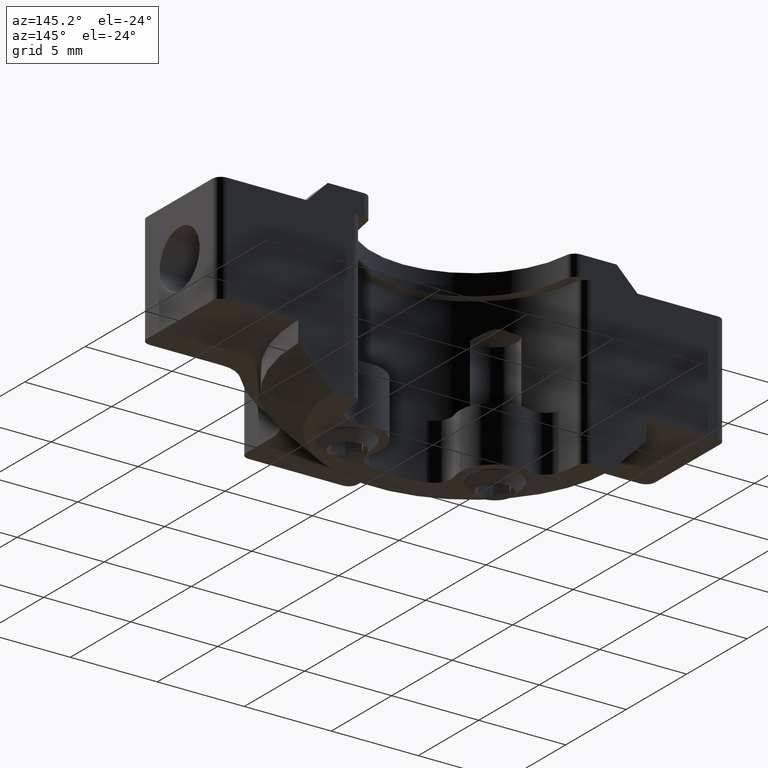
[diagram: clean part render]
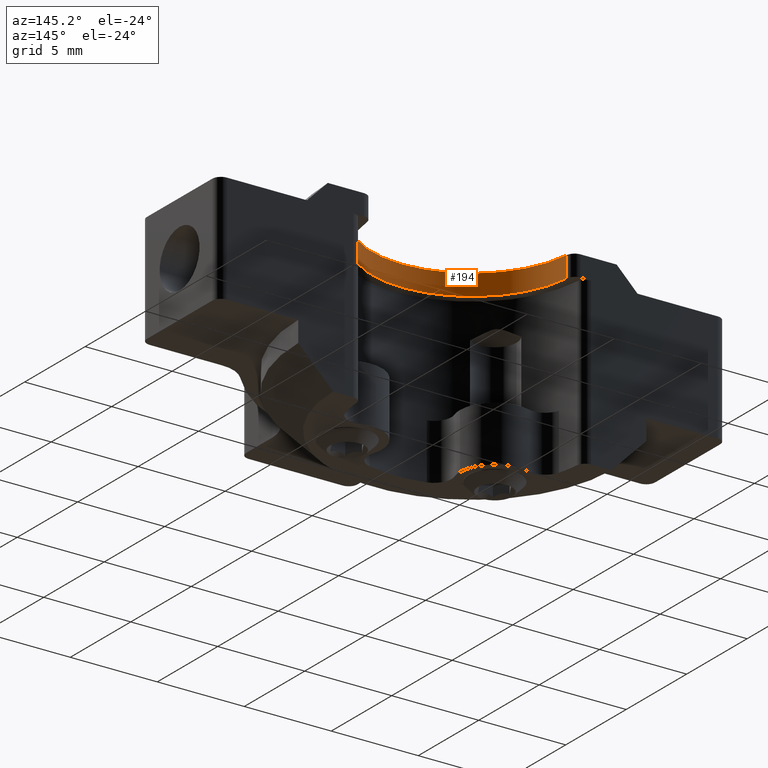
[diagram: same view with one face highlighted and labeled with its STEP entity id]
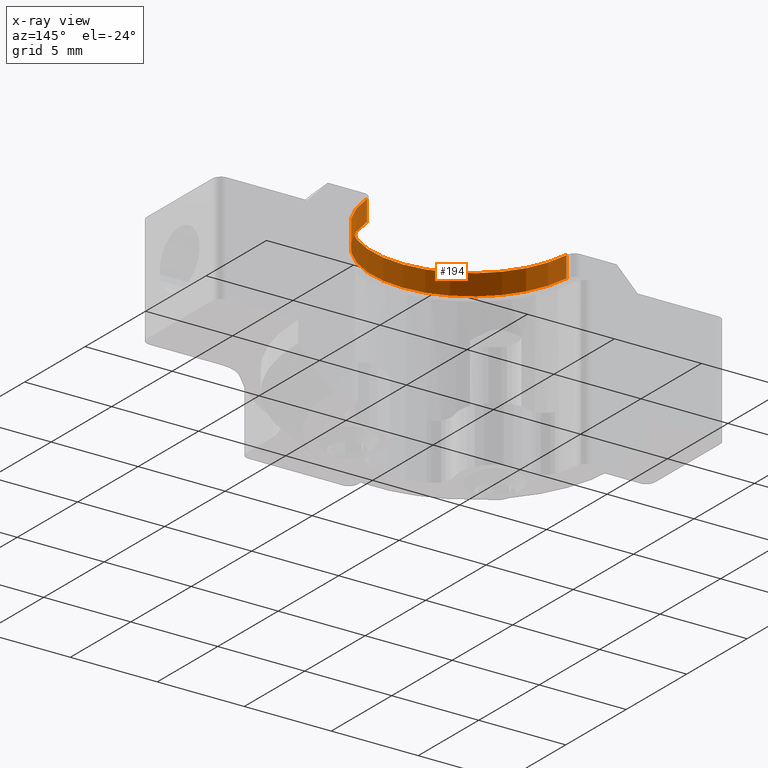
[diagram: x-ray of the same camera — body ghosted, the highlighted face saturated]
A machine part, auxiliary view. The second image highlights one B-rep face of the part: STEP entity #194.
The next image is the same camera in x-ray: the body ghosted, the highlighted face saturated — about 3% of this face is hidden behind the body in this view.
In plain terms, the highlighted cylindrical surface (partial cylindrical patch) has radius 5.75 mm, axis along (-0, -0, 1).
Its self-contained STEP definition (entity closure, byte-faithful):
#194 = ADVANCED_FACE ( 'NONE', ( #2989 ), #716, .F. ) ;
#232 = DIRECTION ( 'NONE',  ( -0.000000000000000000, -0.000000000000000000, -1.000000000000000000 ) ) ;
#250 = CARTESIAN_POINT ( 'NONE',  ( -7.648050176387029886, 5.028821372047168836, 27.05000000000000426 ) ) ;
#291 = VERTEX_POINT ( 'NONE', #1255 ) ;
#363 = CIRCLE ( 'NONE', #627, 5.749999999999999112 ) ;
#391 = CARTESIAN_POINT ( 'NONE',  ( -7.648050176387028998, 5.028821372047168836, 33.35000000000000142 ) ) ;
#489 = DIRECTION ( 'NONE',  ( -0.000000000000000000, 0.000000000000000000, 1.000000000000000000 ) ) ;
#519 = VECTOR ( 'NONE', #2771, 1000.000000000000000 ) ;
#524 = CARTESIAN_POINT ( 'NONE',  ( 3.815090754439912413, 5.028821372047168836, 33.35000000000000142 ) ) ;
#627 = AXIS2_PLACEMENT_3D ( 'NONE', #979, #489, #2977 ) ;
#682 = DIRECTION ( 'NONE',  ( -0.000000000000000000, -0.000000000000000000, 1.000000000000000000 ) ) ;
#716 = CYLINDRICAL_SURFACE ( 'NONE', #1000, 5.749999999999999112 ) ;
#794 = VERTEX_POINT ( 'NONE', #524 ) ;
#821 = EDGE_LOOP ( 'NONE', ( #3017, #2611, #3205, #1327 ) ) ;
#928 = DIRECTION ( 'NONE',  ( 1.000000000000000000, 0.000000000000000000, 0.000000000000000000 ) ) ;
#946 = DIRECTION ( 'NONE',  ( 1.000000000000000000, 0.000000000000000000, 0.000000000000000000 ) ) ;
#979 = CARTESIAN_POINT ( 'NONE',  ( -1.916479710973558293, 5.488821372047168801, 34.55000000000000426 ) ) ;
#997 = EDGE_CURVE ( 'NONE', #291, #1194, #363, .T. ) ;
#1000 = AXIS2_PLACEMENT_3D ( 'NONE', #2195, #682, #928 ) ;
#1055 = EDGE_CURVE ( 'NONE', #2524, #291, #2991, .T. ) ;
#1194 = VERTEX_POINT ( 'NONE', #1613 ) ;
#1255 = CARTESIAN_POINT ( 'NONE',  ( -7.648050176387028998, 5.028821372047168836, 34.55000000000000426 ) ) ;
#1327 = ORIENTED_EDGE ( 'NONE', *, *, #1055, .T. ) ;
#1367 = AXIS2_PLACEMENT_3D ( 'NONE', #3282, #232, #946 ) ;
#1465 = DIRECTION ( 'NONE',  ( -0.000000000000000000, -0.000000000000000000, 1.000000000000000000 ) ) ;
#1467 = EDGE_CURVE ( 'NONE', #794, #2524, #2962, .T. ) ;
#1613 = CARTESIAN_POINT ( 'NONE',  ( 3.815090754439912413, 5.028821372047168836, 34.55000000000000426 ) ) ;
#1804 = EDGE_CURVE ( 'NONE', #1194, #794, #2704, .T. ) ;
#2195 = CARTESIAN_POINT ( 'NONE',  ( -1.916479710973558293, 5.488821372047168801, 27.05000000000000426 ) ) ;
#2521 = CARTESIAN_POINT ( 'NONE',  ( 3.815090754439913301, 5.028821372047168836, 27.05000000000000426 ) ) ;
#2524 = VERTEX_POINT ( 'NONE', #391 ) ;
#2611 = ORIENTED_EDGE ( 'NONE', *, *, #1804, .T. ) ;
#2704 = LINE ( 'NONE', #2521, #519 ) ;
#2771 = DIRECTION ( 'NONE',  ( 0.000000000000000000, 0.000000000000000000, -1.000000000000000000 ) ) ;
#2853 = VECTOR ( 'NONE', #1465, 1000.000000000000000 ) ;
#2962 = CIRCLE ( 'NONE', #1367, 5.749999999999999112 ) ;
#2977 = DIRECTION ( 'NONE',  ( 1.000000000000000000, 0.000000000000000000, 0.000000000000000000 ) ) ;
#2989 = FACE_OUTER_BOUND ( 'NONE', #821, .T. ) ;
#2991 = LINE ( 'NONE', #250, #2853 ) ;
#3017 = ORIENTED_EDGE ( 'NONE', *, *, #997, .T. ) ;
#3205 = ORIENTED_EDGE ( 'NONE', *, *, #1467, .T. ) ;
#3282 = CARTESIAN_POINT ( 'NONE',  ( -1.916479710973558293, 5.488821372047168801, 33.35000000000000142 ) ) ;